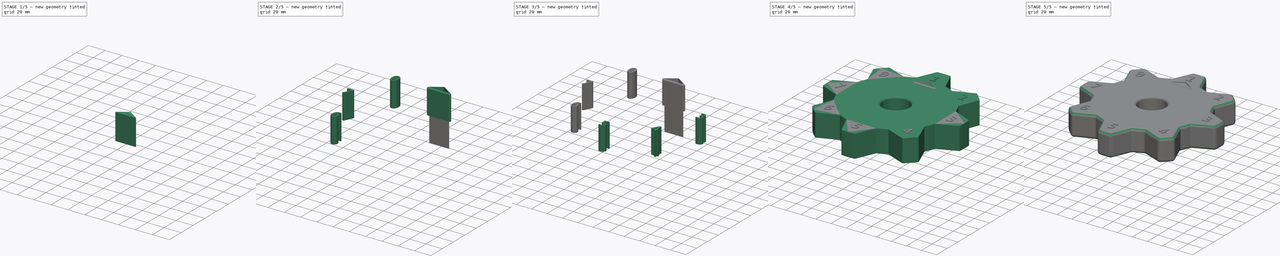
[diagram: build sequence overview — one tinted view per stage of 5, left to right]
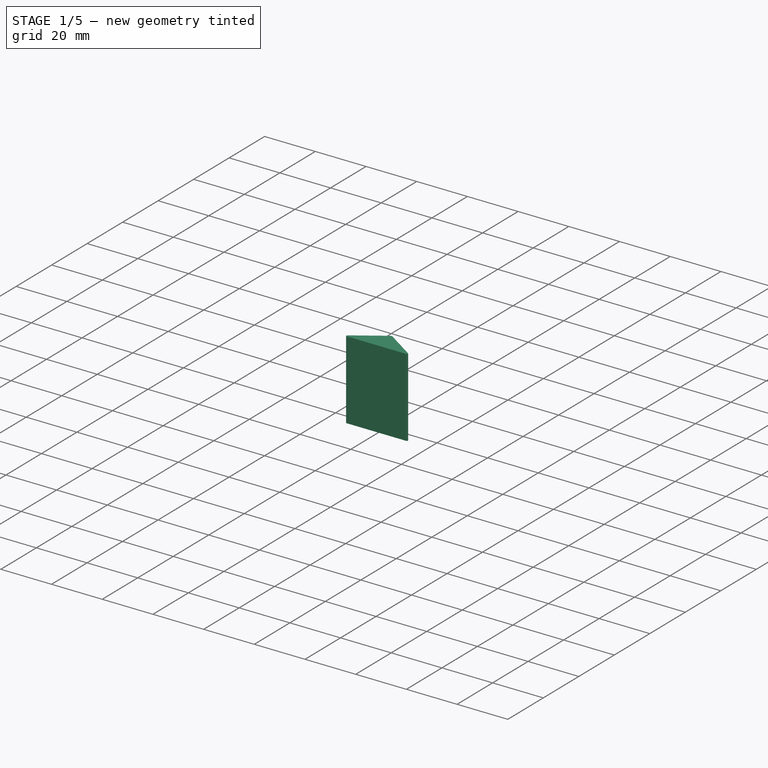
[diagram: stage 1 of 5 — iso view after this stage's code; geometry added in this stage tinted green]
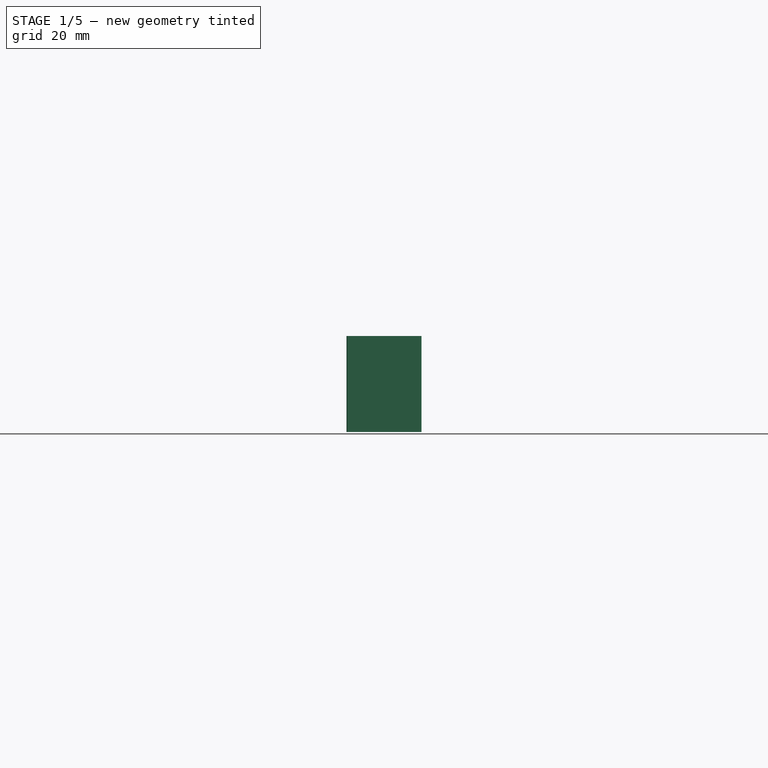
[diagram: stage 1 of 5 — front view after this stage's code; geometry added in this stage tinted green]
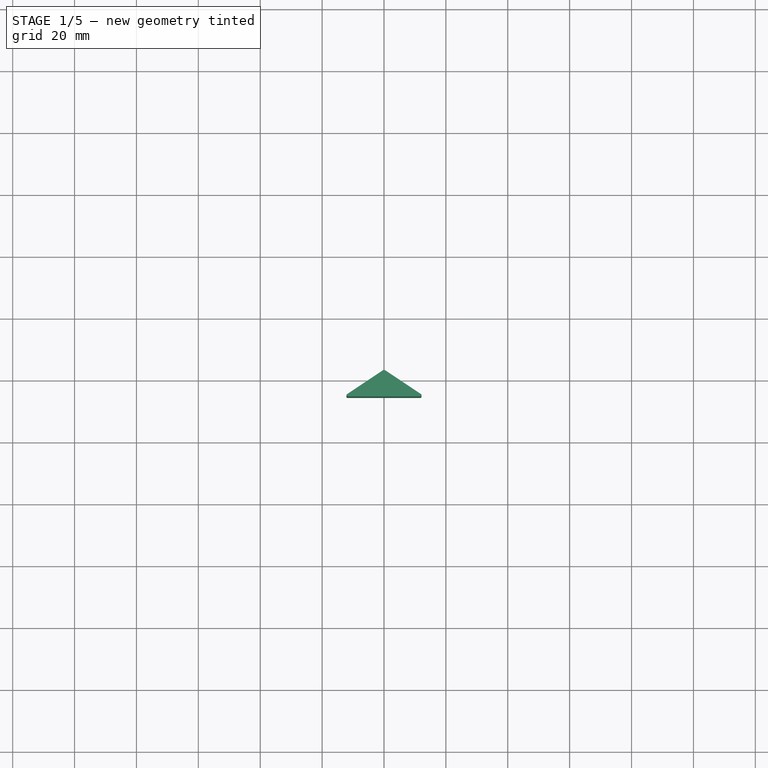
[diagram: stage 1 of 5 — top view after this stage's code; geometry added in this stage tinted green]
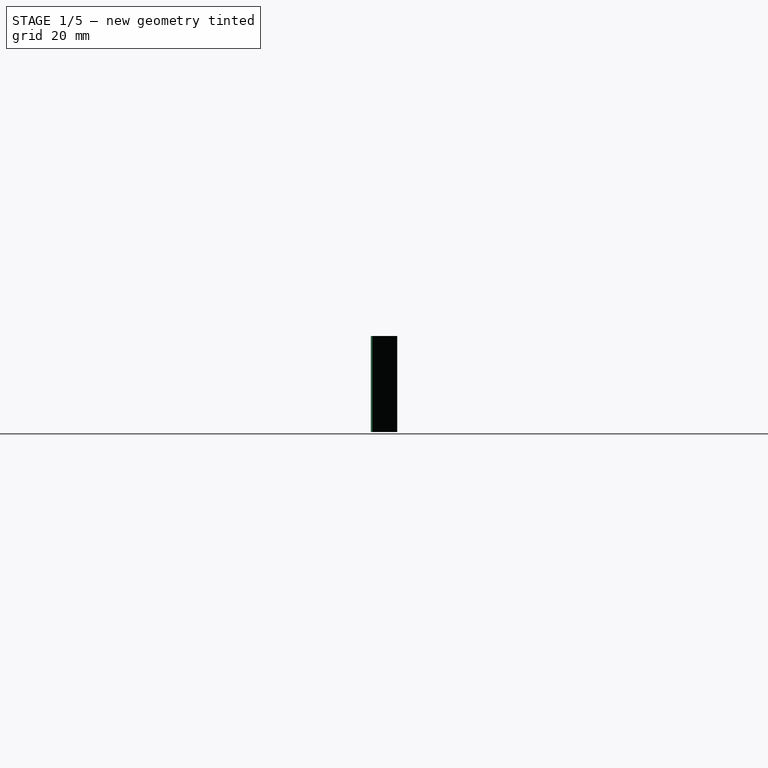
[diagram: stage 1 of 5 — right view after this stage's code; geometry added in this stage tinted green]
FCSTD DOCUMENT  (FreeCAD 0.19R24291 (Git))
Label: LogoGear
License: Creative Commons Attribution-NonCommercial
LicenseURL: http://creativecommons.org/licenses/by-nc/4.0/
objects: PartDesign::Body×12, PartDesign::Pad×11, Part::Part2DObjectPython×8, Sketcher::SketchObject×5, PartDesign::Fillet×5, Spreadsheet::Sheet×1, PartDesign::Pocket×1, App::Link×1, PartDesign::FeatureBase×1, Image::ImagePlane×1
note: 60 computed .brp shape members not serialized (recipe doc carries the construction recipe); baked Part::Feature solids carry a one-line shape summary decoded from their .brp

FEATURE [PartDesign::Body] Body010  label="Num0"
  Group = -> [ShapeString015,Pad009]
  Origin = -> Origin010
  Tip = -> Pad009
FEATURE [PartDesign::Pad] Pad010
  Direction = (1,1,1)
  Length = 31
  Length2 = 100
  Profile = -> Sketch002
  Refine = true
  Type = 0
FEATURE [PartDesign::Fillet] Fillet004
  Base = -> Pad010 [Edge5,Edge2,Edge1,Edge7,Edge9,Edge4]
  BaseFeature = -> Pad010
  Radius = 1.5
  Refine = true
  SupportTransform = false
FEATURE [PartDesign::Body] Body001  label="Marker"
  Group = -> [Sketch002,Pad010,Fillet004,Sketch004,Pocket]
  Origin = -> Origin001
  Tip = -> Pocket
FEATURE [App::Link] Link  label="Sketch006"
  LinkedObject = -> Sketch004
FEATURE [PartDesign::FeatureBase] BaseFeature
  BaseFeature = -> Sketch004
FEATURE [PartDesign::Pad] Pad011
  BaseFeature = -> BaseFeature
  Direction = (1,1,1)
  Length = 31
  Length2 = 100
  Profile = -> BaseFeature
  Refine = true
  Reversed = true
  Type = 0
FEATURE [PartDesign::Body] Body011  label="MarkerInternal"
  BaseFeature = -> Sketch004
  Group = -> [BaseFeature,Pad011]
  Origin = -> Origin011
  Tip = -> Pad011
FEATURE [Image::ImagePlane] ImagePlane  label="PropellerColorDisk"
  Placement = pos=(0,0,30.01) rot=(0,0,1;0.785398rad)
  XSize = 102
  YSize = 102
note: 8 file-system paths scrubbed to <path> (originals preserved in the JSON sidecar)
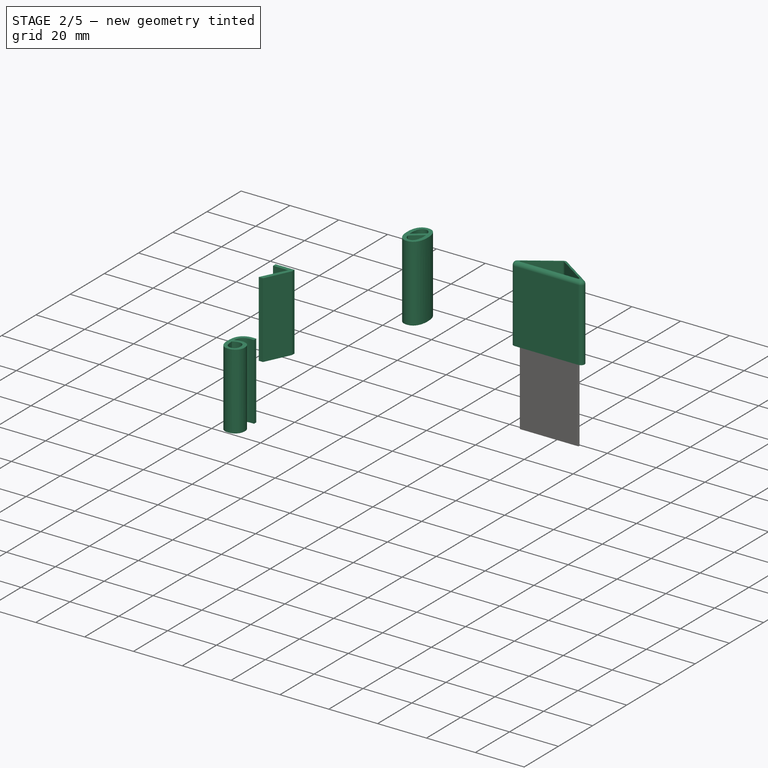
[diagram: stage 2 of 5 — iso view after this stage's code; geometry added in this stage tinted green]
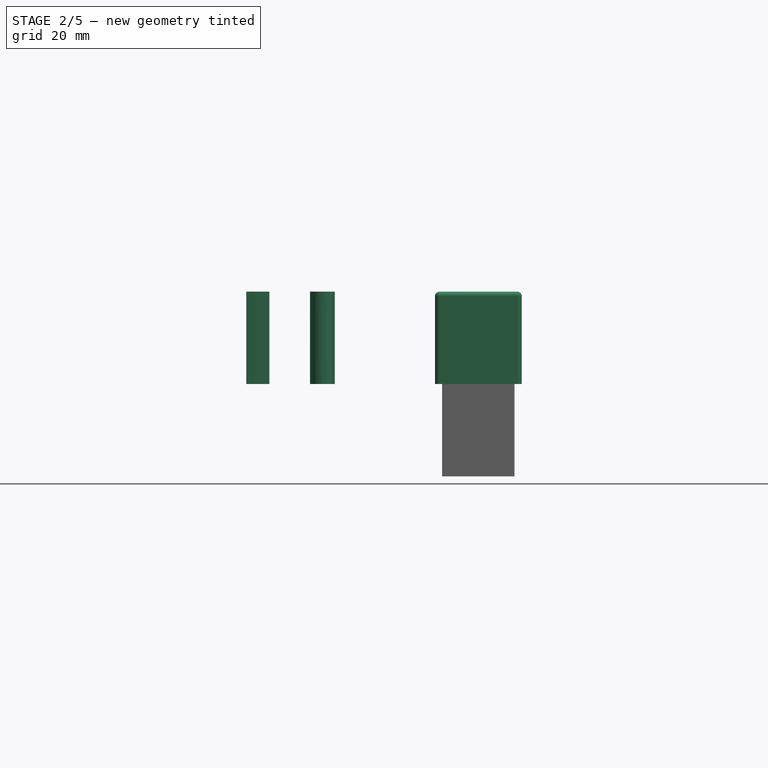
[diagram: stage 2 of 5 — front view after this stage's code; geometry added in this stage tinted green]
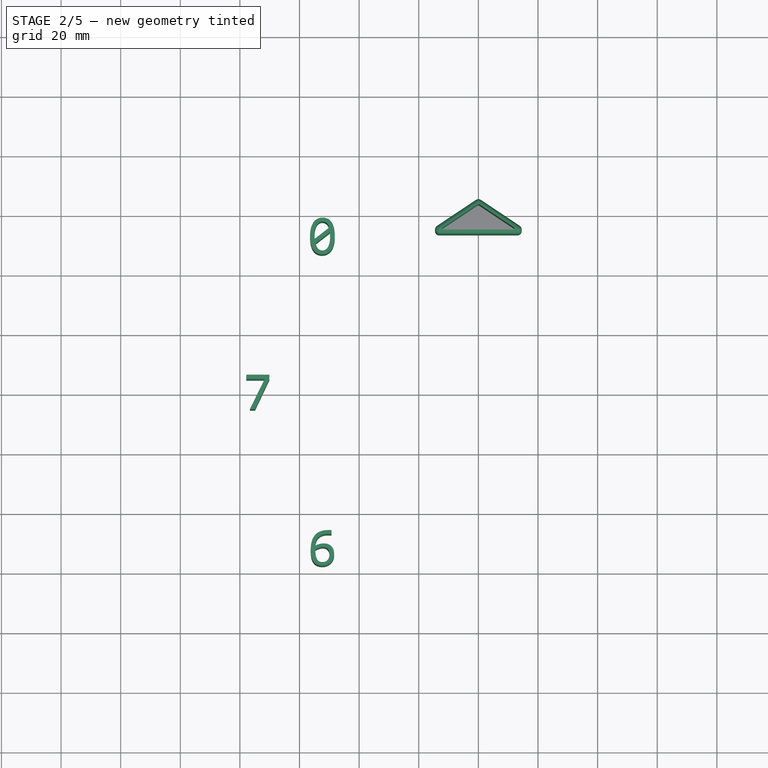
[diagram: stage 2 of 5 — top view after this stage's code; geometry added in this stage tinted green]
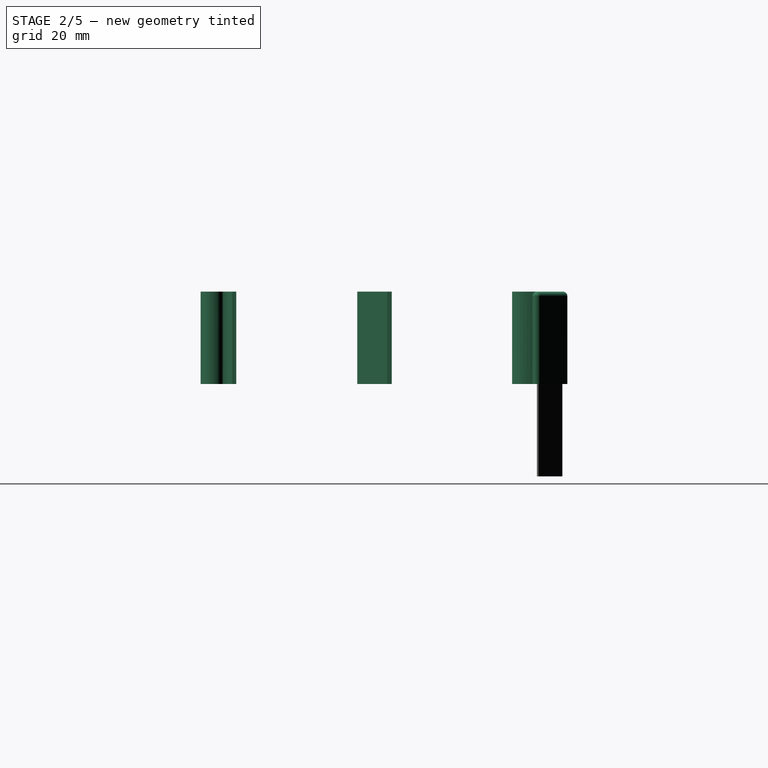
[diagram: stage 2 of 5 — right view after this stage's code; geometry added in this stage tinted green]
FEATURE [PartDesign::Body] Body007  label="Num5"
  Group = -> [ShapeString012,Pad006]
  Origin = -> Origin007
  Tip = -> Pad006
FEATURE [Part::Part2DObjectPython] ShapeString013  label="ShapeString6"  # Draft 2D object (typed FeaturePython)
  AttachmentOffset = pos=(-5.02377,-5.60467,0) rot=(0,0,1;0rad)
  FontFile = <path>
  MapMode = 1
  Placement = pos=(-57.3497,-57.9306,0) rot=(0,0,1;0rad)
  Size = 14
  String = 6
  Support = -> [Sketch003]
  Tracking = 0
  expr: .AttachmentOffset.Base.x = -5.023769808173477mm
  expr: .AttachmentOffset.Base.y = -5.604670558799mm
FEATURE [PartDesign::Pad] Pad007
  Direction = (1,1,1)
  Length = 31
  Length2 = 100
  Profile = -> ShapeString013
  Refine = true
  Type = 0
FEATURE [PartDesign::Body] Body008  label="Num6"
  Group = -> [ShapeString013,Pad007]
  Origin = -> Origin008
  Tip = -> Pad007
FEATURE [Part::Part2DObjectPython] ShapeString014  label="ShapeString7"  # Draft 2D object (typed FeaturePython)
  AttachmentOffset = pos=(-4.89825,-5.79149,0) rot=(0,0,1;0rad)
  FontFile = <path>
  MapMode = 1
  Placement = pos=(-78.8982,-5.79149,0) rot=(0,0,1;0rad)
  Size = 14
  String = 7
  Support = -> [Sketch003]
  Tracking = 0
  expr: .AttachmentOffset.Base.x = -4.898248540450375mm
  expr: .AttachmentOffset.Base.y = -5.791492910758966mm
FEATURE [PartDesign::Pad] Pad008
  Direction = (1,1,1)
  Length = 31
  Length2 = 100
  Profile = -> ShapeString014
  Refine = true
  Type = 0
FEATURE [PartDesign::Body] Body009  label="Num7"
  Group = -> [ShapeString014,Pad008]
  Origin = -> Origin009
  Tip = -> Pad008
FEATURE [Part::Part2DObjectPython] ShapeString015  label="ShapeString0"  # Draft 2D object (typed FeaturePython)
  AttachmentOffset = pos=(-4.93036,-5.79149,0) rot=(0,0,1;0rad)
  FontFile = <path>
  MapMode = 1
  Placement = pos=(-57.2563,46.5344,0) rot=(0,0,1;0rad)
  Size = 14
  String = 0
  Support = -> [Sketch003]
  Tracking = 0
  expr: .AttachmentOffset.Base.x = -4.930358632193494mm
  expr: .AttachmentOffset.Base.y = -5.791492910758966mm
FEATURE [PartDesign::Pad] Pad009
  Direction = (1,1,1)
  Length = 31
  Length2 = 100
  Profile = -> ShapeString015
  Refine = true
  Type = 0
FEATURE [Sketcher::SketchObject] Sketch004
  ExternalGeometry = -> [Sketch002]
  FullyConstrained = true
  MapMode = 5
  Placement = pos=(0,0,31) rot=(0,0,1;0rad)
  Support = -> [Fillet004]
  sketch-geometry (6):
    g0: LineSegment StartX=-11.9466 StartY=55.2328 StartZ=0 EndX=-0.44376 EndY=62.9014 EndZ=0
    g1: LineSegment StartX=-11.7247 StartY=54.5 StartZ=0 EndX=11.7247 EndY=54.5 EndZ=0
    g2: LineSegment StartX=0.44376 StartY=62.9014 StartZ=0 EndX=11.9466 EndY=55.2328 EndZ=0
    g3: ArcOfCircle CenterX=-11.7247 CenterY=54.9 CenterZ=0 NormalX=0 NormalY=0 NormalZ=1 AngleXU=0 Radius=0.4 StartAngle=2.15878 EndAngle=4.71239
    g4: ArcOfCircle CenterX=0 CenterY=62.2357 CenterZ=0 NormalX=0 NormalY=0 NormalZ=1 AngleXU=0 Radius=0.8 StartAngle=0.982794 EndAngle=2.1588
    g5: ArcOfCircle CenterX=11.7247 CenterY=54.9 CenterZ=0 NormalX=0 NormalY=0 NormalZ=1 AngleXU=0 Radius=0.4 StartAngle=4.71239 EndAngle=7.266
  constraints (21):
    c: Horizontal(g1)
    c: Coincident(g3,g0)
    c: Coincident(g3,g1)
    c: PointOnObject(g4,g-2)
    c: Coincident(g4,g0)
    c: Coincident(g5,g2)
    c: Coincident(g5,g1)
    c: Radius(g4) = 0.8
    c: Radius(g3) = 0.4
    c: Radius(g5) = 0.4
    c: Parallel(g-3,g0)
    c: Parallel(g2,g-4)
    c: Coincident(g4,g2)
    c: Distance(g0,g-3) = 1.5
    c: Distance(g2,g-4) = 1.5
    c: Tangent(g0,g4)
    c: Tangent(g0,g3)
    c: Tangent(g1,g3)
    c: Tangent(g2,g5)
    c: Tangent(g1,g5)
    c: Distance(g1,g-5) = 1.5
FEATURE [PartDesign::Pocket] Pocket
  BaseFeature = -> Fillet004
  Length = 32
  Length2 = 100
  Profile = -> Sketch004
  Refine = true
  Type = 0
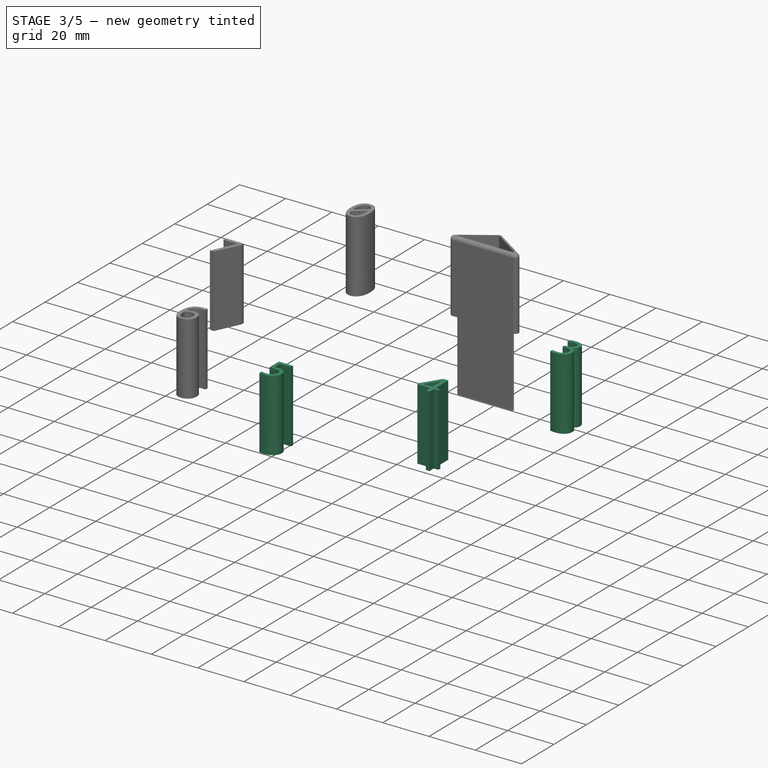
[diagram: stage 3 of 5 — iso view after this stage's code; geometry added in this stage tinted green]
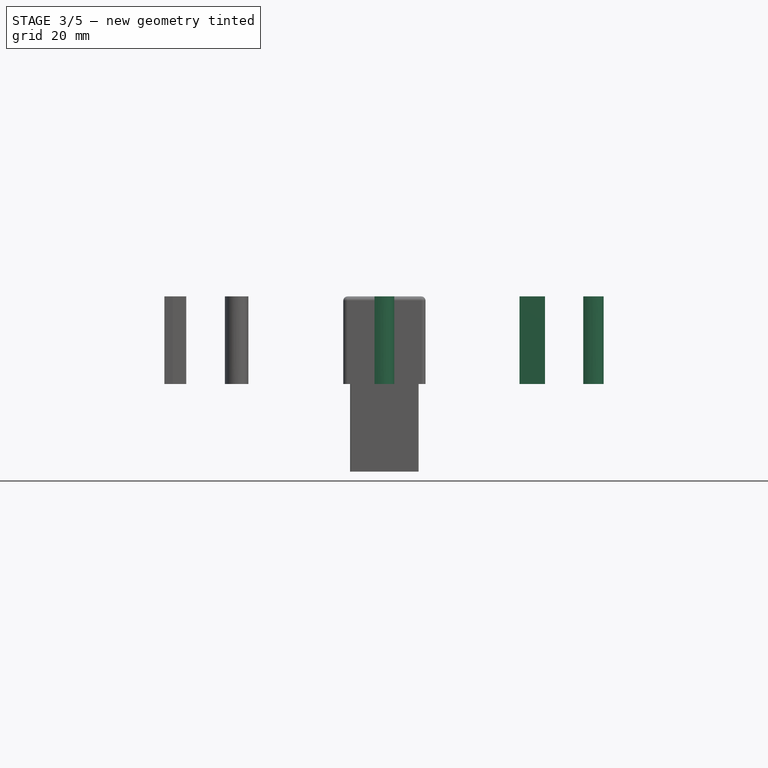
[diagram: stage 3 of 5 — front view after this stage's code; geometry added in this stage tinted green]
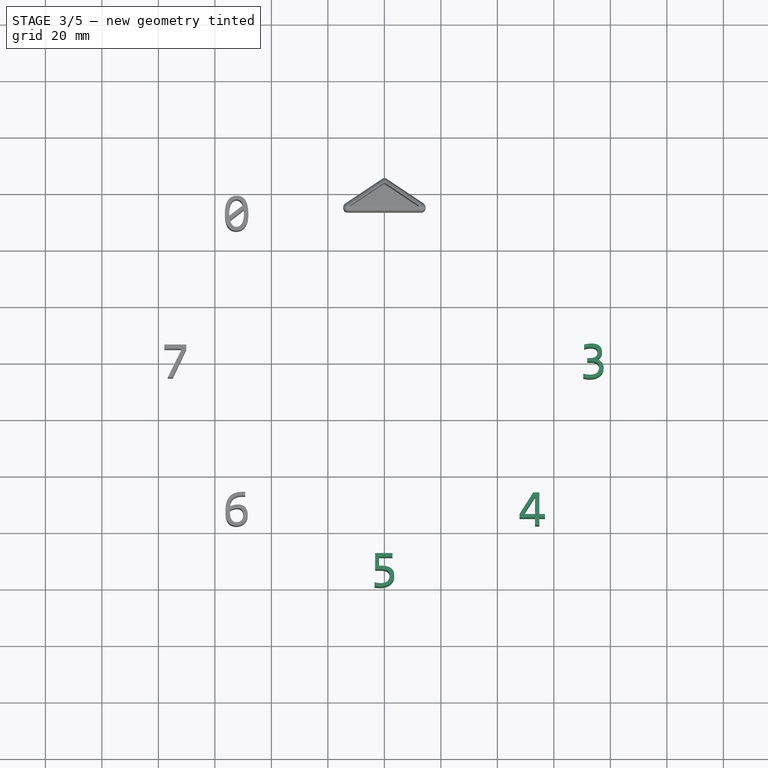
[diagram: stage 3 of 5 — top view after this stage's code; geometry added in this stage tinted green]
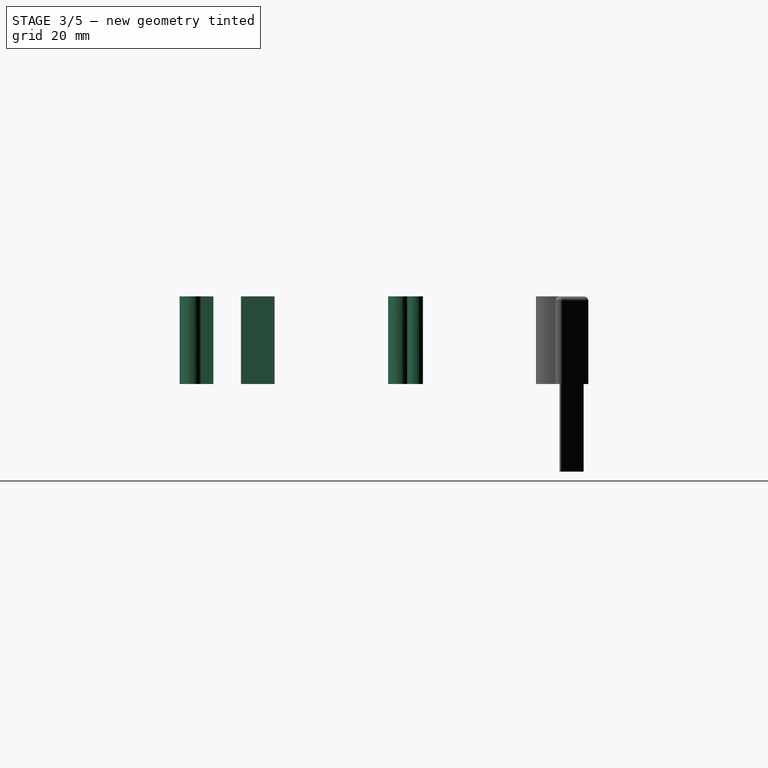
[diagram: stage 3 of 5 — right view after this stage's code; geometry added in this stage tinted green]
FEATURE [PartDesign::Body] Body004  label="Num2"
  Group = -> [ShapeString009,Pad003]
  Origin = -> Origin004
  Tip = -> Pad003
FEATURE [Part::Part2DObjectPython] ShapeString010  label="ShapeString3"  # Draft 2D object (typed FeaturePython)
  AttachmentOffset = pos=(-5.02,-5.79,0) rot=(0,0,1;0rad)
  FontFile = <path>
  MapMode = 1
  Placement = pos=(68.98,-5.79,0) rot=(0,0,1;0rad)
  Size = 14
  String = 3
  Support = -> [Sketch003]
  Tracking = 0
  expr: .Placement.Base.x = -5.02mm
  expr: .AttachmentOffset.Base.y = -5.79
  expr: .Placement.Base.y = -.Shape.BoundBox.Center.y
  expr: .AttachmentOffset.Base.x = -5.02
FEATURE [PartDesign::Pad] Pad004
  Direction = (1,1,1)
  Length = 31
  Length2 = 100
  Profile = -> ShapeString010
  Refine = true
  Type = 0
FEATURE [PartDesign::Body] Body005  label="Num3"
  Group = -> [ShapeString010,Pad004]
  Origin = -> Origin005
  Tip = -> Pad004
FEATURE [Part::Part2DObjectPython] ShapeString011  label="ShapeString4"  # Draft 2D object (typed FeaturePython)
  AttachmentOffset = pos=(-4.88949,-5.79149,0) rot=(0,0,1;0rad)
  FontFile = <path>
  MapMode = 1
  Placement = pos=(47.4364,-58.1174,0) rot=(0,0,1;0rad)
  Size = 14
  String = 4
  Support = -> [Sketch003]
  Tracking = 0
  expr: .AttachmentOffset.Base.x = -4.889491242702252mm
  expr: .AttachmentOffset.Base.y = -5.791492910758966mm
FEATURE [PartDesign::Pad] Pad005
  Direction = (1,1,1)
  Length = 31
  Length2 = 100
  Profile = -> ShapeString011
  Refine = true
  Type = 0
FEATURE [PartDesign::Body] Body006  label="Num4"
  Group = -> [ShapeString011,Pad005]
  Origin = -> Origin006
  Tip = -> Pad005
FEATURE [Part::Part2DObjectPython] ShapeString012  label="ShapeString5"  # Draft 2D object (typed FeaturePython)
  AttachmentOffset = pos=(-5.05004,-5.60467,0) rot=(0,0,1;0rad)
  FontFile = <path>
  MapMode = 1
  Placement = pos=(-5.05004,-79.6047,0) rot=(0,0,1;0rad)
  Size = 14
  String = 5
  Support = -> [Sketch003]
  Tracking = 0
  expr: .AttachmentOffset.Base.x = -5.050041701417848mm
  expr: .AttachmentOffset.Base.y = -5.604670558799mm
FEATURE [PartDesign::Pad] Pad006
  Direction = (1,1,1)
  Length = 31
  Length2 = 100
  Profile = -> ShapeString012
  Refine = true
  Type = 0
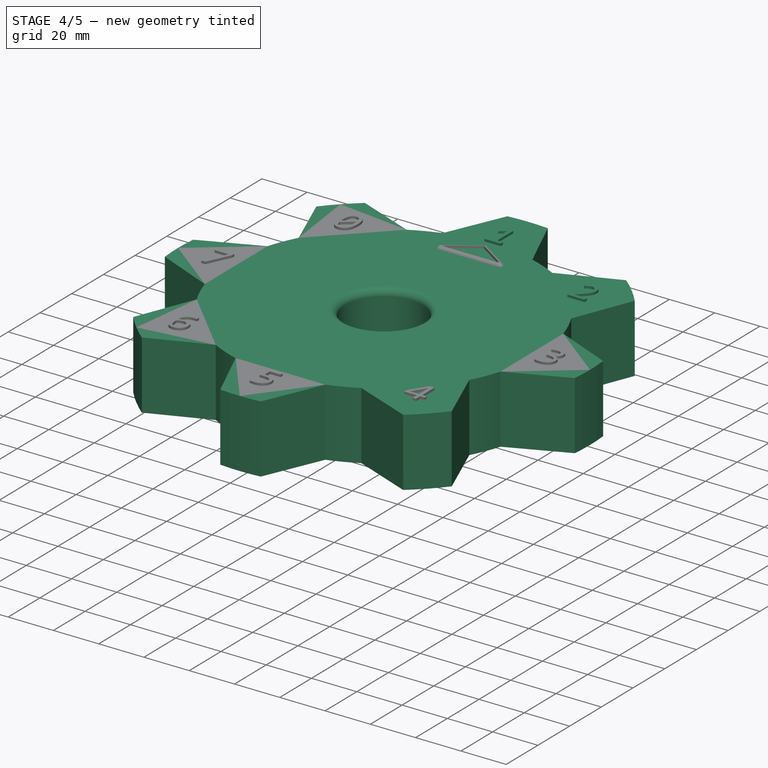
[diagram: stage 4 of 5 — iso view after this stage's code; geometry added in this stage tinted green]
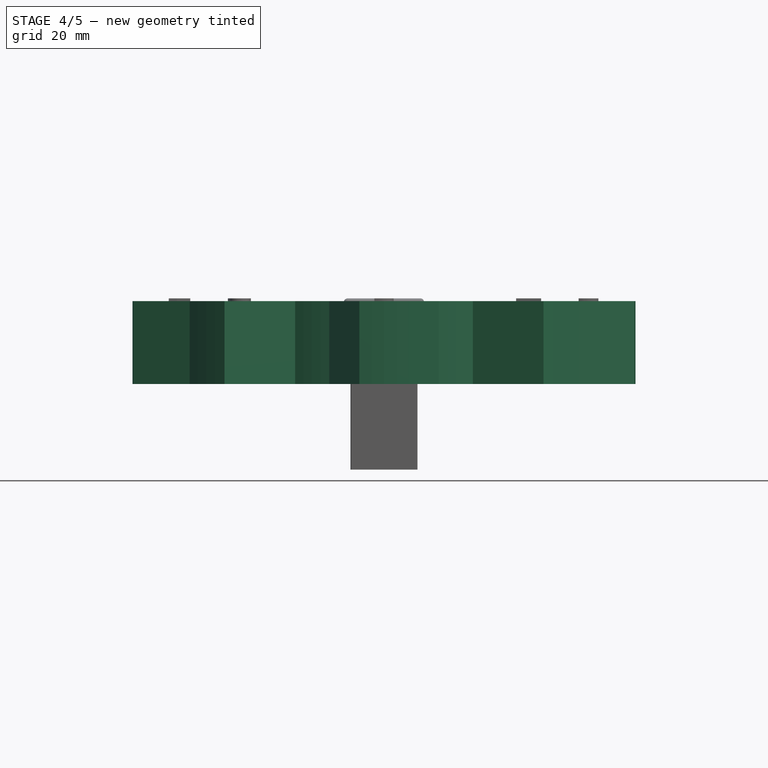
[diagram: stage 4 of 5 — front view after this stage's code; geometry added in this stage tinted green]
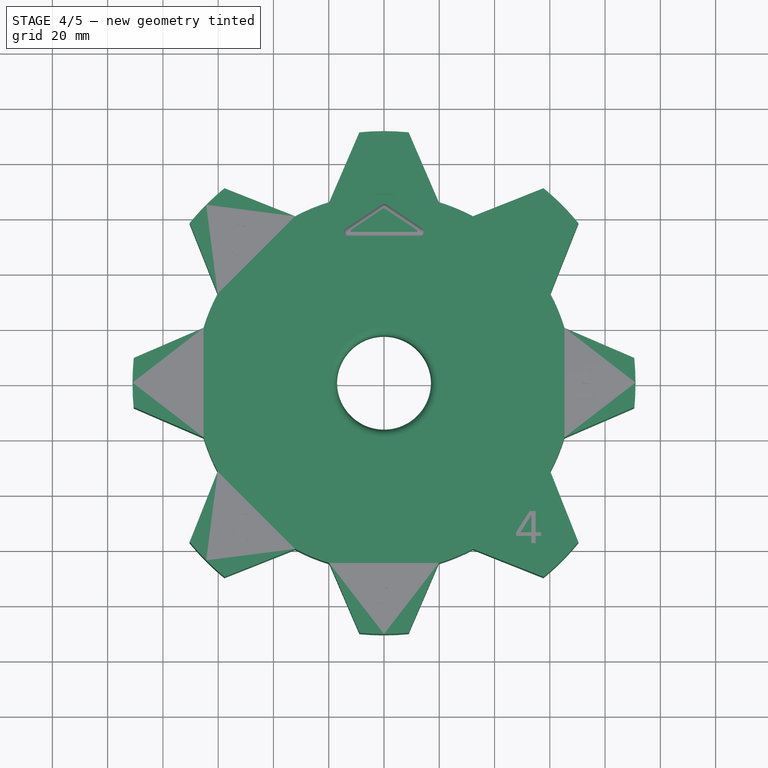
[diagram: stage 4 of 5 — top view after this stage's code; geometry added in this stage tinted green]
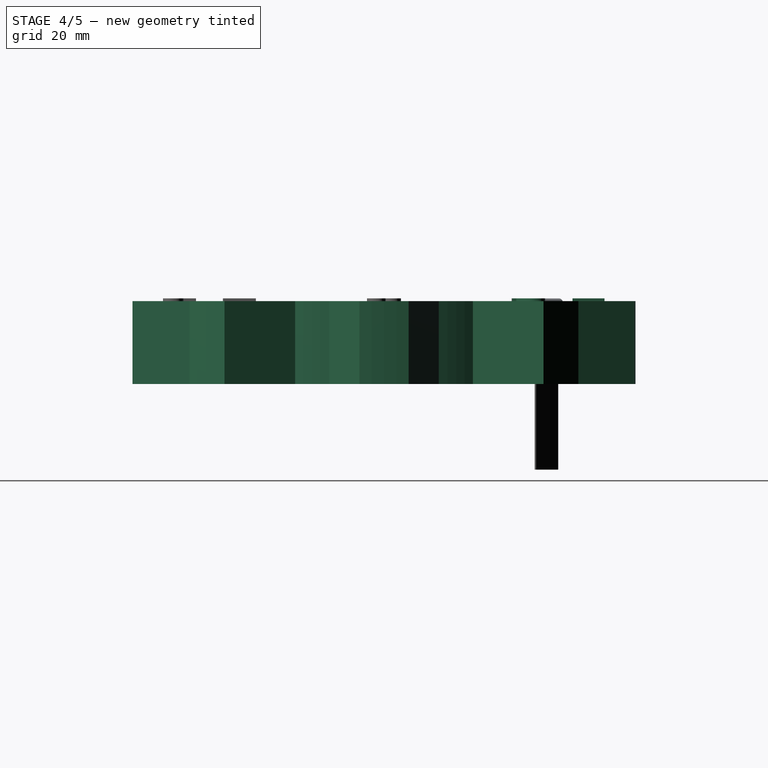
[diagram: stage 4 of 5 — right view after this stage's code; geometry added in this stage tinted green]
FEATURE [Sketcher::SketchObject] Sketch  label="Frame"
  FullyConstrained = true
  MapMode = 5
  Support = -> [XY_Plane]
  sketch-geometry (4):
    g0: LineSegment StartX=-107 StartY=107 StartZ=0 EndX=107 EndY=107 EndZ=0
    g1: LineSegment StartX=107 StartY=107 StartZ=0 EndX=107 EndY=-107 EndZ=0
    g2: LineSegment StartX=107 StartY=-107 StartZ=0 EndX=-107 EndY=-107 EndZ=0
    g3: LineSegment StartX=-107 StartY=-107 StartZ=0 EndX=-107 EndY=107 EndZ=0
  constraints (12):
    c: Coincident(g0,g1)
    c: Coincident(g1,g2)
    c: Coincident(g2,g3)
    c: Coincident(g3,g0)
    c: Horizontal(g0)
    c: Horizontal(g2)
    c: Vertical(g1)
    c: Vertical(g3)
    c: DistanceX(g0,g0) = 214
    c: DistanceY(g1,g1) = 214
    c: Distance(g0,g-2) = 107
    c: Distance(g0,g-1) = 107
FEATURE [Sketcher::SketchObject] Sketch001  label="MainGearSketch"
  FullyConstrained = true
  MapMode = 5
  Support = -> [XY_Plane]
  expr: Constraints[62] = Spreadsheet.sepAngule
  expr: Constraints[29] = Spreadsheet.sepAngule
  expr: Constraints[44] = Spreadsheet.sepAngule
  expr: .Constraints.p8 = Spreadsheet.sepAngule
  expr: Constraints[65] = Spreadsheet.sepAngule
  expr: Constraints[28] = Spreadsheet.sepAngule
  expr: .Constraints.p1 = Spreadsheet.a1
  expr: Constraints[25] = Spreadsheet.sepAngule
  expr: Constraints[31] = Spreadsheet.sepAngule
  expr: Constraints[30] = Spreadsheet.sepAngule
  expr: .Constraints.p6 = Spreadsheet.sepAngule
  expr: Constraints[27] = Spreadsheet.sepAngule
  expr: Constraints[70] = .Constraints.radInt
  expr: Constraints[46] = Spreadsheet.sepAngule
  expr: Constraints[73] = .Constraints.radInt
  expr: .Constraints.p7 = Spreadsheet.sepAngule
  expr: .Constraints.p4 = Spreadsheet.sepAngule
  expr: Constraints[59] = Spreadsheet.sepAngule
  expr: Constraints[61] = Spreadsheet.sepAngule
  expr: .Constraints.p2 = Spreadsheet.sepAngule
  expr: Constraints[80] = .Constraints.radExt
  expr: Constraints[81] = .Constraints.radExt
  expr: Constraints[42] = Spreadsheet.sepAngule
  expr: Constraints[78] = .Constraints.radExt
  expr: Constraints[79] = .Constraints.radExt
  expr: Constraints[32] = Spreadsheet.sepAngule
  expr: Constraints[74] = .Constraints.radInt
  expr: Constraints[26] = Spreadsheet.sepAngule
  expr: .Constraints.p5 = Spreadsheet.sepAngule
  expr: Constraints[34] = Spreadsheet.sepAngule
  expr: .Constraints.p3 = Spreadsheet.sepAngule
  expr: Constraints[43] = Spreadsheet.sepAngule
  expr: Constraints[109] = .Constraints.radExt
  expr: Constraints[67] = .Constraints.radInt
  expr: Constraints[163] = .Constraints.radExt
  expr: Constraints[110] = .Constraints.radExt
  expr: Constraints[64] = Spreadsheet.sepAngule
  expr: Constraints[48] = Spreadsheet.sepAngule
  expr: Constraints[68] = .Constraints.radInt
  expr: .Constraints.radExt = 91mm
  expr: Constraints[82] = .Constraints.radExt
  expr: Constraints[111] = .Constraints.radExt
  expr: Constraints[47] = Spreadsheet.sepAngule
  expr: Constraints[112] = .Constraints.radExt
  expr: Constraints[45] = Spreadsheet.sepAngule
  expr: Constraints[58] = Spreadsheet.sepAngule
  expr: Constraints[49] = Spreadsheet.sepAngule
  expr: Constraints[63] = Spreadsheet.sepAngule
  expr: Constraints[33] = Spreadsheet.sepAngule
  expr: Constraints[69] = .Constraints.radInt
  expr: Constraints[71] = .Constraints.radInt
  expr: Constraints[35] = Spreadsheet.sepAngule
  expr: Constraints[60] = Spreadsheet.sepAngule
  expr: Constraints[72] = .Constraints.radInt
  expr: Constraints[57] = Spreadsheet.sepAngule
  sketch-geometry (66):
    g0: LineSegment StartX=0 StartY=0 StartZ=0 EndX=0 EndY=91 EndZ=0
    g1: LineSegment StartX=0 StartY=0 StartZ=0 EndX=8.91956 EndY=90.5618 EndZ=0
    g2: LineSegment StartX=0 StartY=0 StartZ=0 EndX=19.8119 EndY=65.3112 EndZ=0
    g3: LineSegment StartX=0 StartY=0 StartZ=0 EndX=32.1728 EndY=60.1911 EndZ=0
    g4: LineSegment StartX=0 StartY=0 StartZ=0 EndX=57.7298 EndY=70.344 EndZ=0
    g5: LineSegment StartX=0 StartY=0 StartZ=0 EndX=70.344 EndY=57.7298 EndZ=0
    g6: LineSegment StartX=0 StartY=0 StartZ=0 EndX=60.1911 EndY=32.1728 EndZ=0
    g7: LineSegment StartX=0 StartY=0 StartZ=0 EndX=65.3112 EndY=19.8119 EndZ=0
    g8: LineSegment StartX=0 StartY=0 StartZ=0 EndX=90.5618 EndY=8.91956 EndZ=0
    g9: LineSegment StartX=0 StartY=0 StartZ=0 EndX=90.5618 EndY=-8.91956 EndZ=0
    g10: LineSegment StartX=0 StartY=0 StartZ=0 EndX=65.3112 EndY=-19.8119 EndZ=0
    g11: LineSegment StartX=0 StartY=0 StartZ=0 EndX=60.1911 EndY=-32.1728 EndZ=0
    g12: LineSegment StartX=0 StartY=0 StartZ=0 EndX=70.344 EndY=-57.7298 EndZ=0
    g13: LineSegment StartX=0 StartY=0 StartZ=0 EndX=57.7298 EndY=-70.344 EndZ=0
    g14: LineSegment StartX=0 StartY=0 StartZ=0 EndX=32.1728 EndY=-60.1911 EndZ=0
    g15: LineSegment StartX=0 StartY=0 StartZ=0 EndX=19.8119 EndY=-65.3112 EndZ=0
    g16: LineSegment StartX=0 StartY=0 StartZ=0 EndX=8.91956 EndY=-90.5618 EndZ=0
    g17: LineSegment StartX=0 StartY=0 StartZ=0 EndX=-8.91956 EndY=-90.5618 EndZ=0
    g18: LineSegment StartX=0 StartY=0 StartZ=0 EndX=-19.8119 EndY=-65.3112 EndZ=0
    g19: LineSegment StartX=0 StartY=0 StartZ=0 EndX=-32.1728 EndY=-60.1911 EndZ=0
    g20: LineSegment StartX=0 StartY=0 StartZ=0 EndX=-57.7298 EndY=-70.344 EndZ=0
    g21: LineSegment StartX=0 StartY=0 StartZ=0 EndX=-70.344 EndY=-57.7298 EndZ=0
    g22: LineSegment StartX=0 StartY=0 StartZ=0 EndX=-60.1911 EndY=-32.1728 EndZ=0
    g23: LineSegment StartX=0 StartY=0 StartZ=0 EndX=-65.3112 EndY=-19.8119 EndZ=0
    g24: LineSegment StartX=0 StartY=0 StartZ=0 EndX=-90.5618 EndY=-8.91956 EndZ=0
    g25: LineSegment StartX=0 StartY=0 StartZ=0 EndX=-90.5618 EndY=8.91956 EndZ=0
    g26: LineSegment StartX=0 StartY=0 StartZ=0 EndX=-65.3112 EndY=19.8119 EndZ=0
    g27: LineSegment StartX=0 StartY=0 StartZ=0 EndX=-60.1911 EndY=32.1728 EndZ=0
    g28: LineSegment StartX=0 StartY=0 StartZ=0 EndX=-70.344 EndY=57.7298 EndZ=0
    g29: LineSegment StartX=0 StartY=0 StartZ=0 EndX=-57.7298 EndY=70.344 EndZ=0
    g30: LineSegment StartX=0 StartY=0 StartZ=0 EndX=-32.1728 EndY=60.1911 EndZ=0
    g31: LineSegment StartX=0 StartY=0 StartZ=0 EndX=-19.8119 EndY=65.3112 EndZ=0
    g32: LineSegment StartX=0 StartY=0 StartZ=0 EndX=-8.91956 EndY=90.5618 EndZ=0
    g33: ArcOfCircle CenterX=-1.72e-14 CenterY=-2.91e-14 CenterZ=0 NormalX=0 NormalY=0 NormalZ=1 AngleXU=0 Radius=68.25 StartAngle=5.79231 EndAngle=5.98866
    g34: ArcOfCircle CenterX=-1.72e-14 CenterY=-2.91e-14 CenterZ=0 NormalX=0 NormalY=0 NormalZ=1 AngleXU=0 Radius=68.25 StartAngle=0.294524 EndAngle=0.490874
    g35: ArcOfCircle CenterX=-1.72e-14 CenterY=-2.91e-14 CenterZ=0 NormalX=0 NormalY=0 NormalZ=1 AngleXU=0 Radius=91 StartAngle=0.687223 EndAngle=0.883573
    g36: ArcOfCircle CenterX=-1.72e-14 CenterY=-2.91e-14 CenterZ=0 NormalX=0 NormalY=0 NormalZ=1 AngleXU=0 Radius=91 StartAngle=6.18501 EndAngle=6.38136
    g37: ArcOfCircle CenterX=-1.72e-14 CenterY=-2.91e-14 CenterZ=0 NormalX=0 NormalY=0 NormalZ=1 AngleXU=0 Radius=91 StartAngle=5.39961 EndAngle=5.59596
    g38: ArcOfCircle CenterX=-1.72e-14 CenterY=-2.91e-14 CenterZ=0 NormalX=0 NormalY=0 NormalZ=1 AngleXU=0 Radius=91 StartAngle=4.61421 EndAngle=4.81056
    g39: ArcOfCircle CenterX=-1.72e-14 CenterY=-2.91e-14 CenterZ=0 NormalX=0 NormalY=0 NormalZ=1 AngleXU=0 Radius=91 StartAngle=3.82882 EndAngle=4.02517
    g40: ArcOfCircle CenterX=-1.72e-14 CenterY=-2.91e-14 CenterZ=0 NormalX=0 NormalY=0 NormalZ=1 AngleXU=0 Radius=91 StartAngle=3.04342 EndAngle=3.23977
    g41: ArcOfCircle CenterX=-1.72e-14 CenterY=-2.91e-14 CenterZ=0 NormalX=0 NormalY=0 NormalZ=1 AngleXU=0 Radius=91 StartAngle=2.25802 EndAngle=2.45437
    g42: ArcOfCircle CenterX=-1.72e-14 CenterY=-2.91e-14 CenterZ=0 NormalX=0 NormalY=0 NormalZ=1 AngleXU=0 Radius=91 StartAngle=1.47262 EndAngle=1.66897
    g43: ArcOfCircle CenterX=-1.72e-14 CenterY=-2.91e-14 CenterZ=0 NormalX=0 NormalY=0 NormalZ=1 AngleXU=0 Radius=68.25 StartAngle=5.00691 EndAngle=5.20326
    g44: ArcOfCircle CenterX=-1.72e-14 CenterY=-2.91e-14 CenterZ=0 NormalX=0 NormalY=0 NormalZ=1 AngleXU=0 Radius=68.25 StartAngle=1.07992 EndAngle=1.27627
    g45: LineSegment StartX=8.91956 StartY=90.5618 StartZ=0 EndX=19.8119 EndY=65.3112 EndZ=0
    g46: LineSegment StartX=32.1728 StartY=60.1911 StartZ=0 EndX=57.7298 EndY=70.344 EndZ=0
    g47: LineSegment StartX=70.344 StartY=57.7298 StartZ=0 EndX=60.1911 EndY=32.1728 EndZ=0
    g48: LineSegment StartX=65.3112 StartY=19.8119 StartZ=0 EndX=90.5618 EndY=8.91956 EndZ=0
    g49: LineSegment StartX=90.5618 StartY=-8.91956 StartZ=0 EndX=65.3112 EndY=-19.8119 EndZ=0
    g50: LineSegment StartX=60.1911 StartY=-32.1728 StartZ=0 EndX=70.344 EndY=-57.7298 EndZ=0
    g51: LineSegment StartX=57.7298 StartY=-70.344 StartZ=0 EndX=32.1728 EndY=-60.1911 EndZ=0
    g52: LineSegment StartX=19.8119 StartY=-65.3112 StartZ=0 EndX=8.91956 EndY=-90.5618 EndZ=0
    g53: LineSegment StartX=-8.91956 StartY=-90.5618 StartZ=0 EndX=-19.8119 EndY=-65.3112 EndZ=0
    g54: LineSegment StartX=-32.1728 StartY=-60.1911 StartZ=0 EndX=-57.7298 EndY=-70.344 EndZ=0
    g55: LineSegment StartX=-70.344 StartY=-57.7298 StartZ=0 EndX=-60.1911 EndY=-32.1728 EndZ=0
    g56: LineSegment StartX=-65.3112 StartY=-19.8119 StartZ=0 EndX=-90.5618 EndY=-8.91956 EndZ=0
    g57: LineSegment StartX=-90.5618 StartY=8.91956 StartZ=0 EndX=-65.3112 EndY=19.8119 EndZ=0
    g58: LineSegment StartX=-60.1911 StartY=32.1728 StartZ=0 EndX=-70.344 EndY=57.7298 EndZ=0
    g59: LineSegment StartX=-57.7298 StartY=70.344 StartZ=0 EndX=-32.1728 EndY=60.1911 EndZ=0
    g60: LineSegment StartX=-19.8119 StartY=65.3112 StartZ=0 EndX=-8.91956 EndY=90.5618 EndZ=0
    g61: ArcOfCircle CenterX=-1.72e-14 CenterY=-2.91e-14 CenterZ=0 NormalX=0 NormalY=0 NormalZ=1 AngleXU=0 Radius=68.25 StartAngle=2.65072 EndAngle=2.84707
    g62: ArcOfCircle CenterX=-1.72e-14 CenterY=-2.91e-14 CenterZ=0 NormalX=0 NormalY=0 NormalZ=1 AngleXU=0 Radius=68.25 StartAngle=3.43612 EndAngle=3.63247
    g63: ArcOfCircle CenterX=-1.72e-14 CenterY=-2.91e-14 CenterZ=0 NormalX=0 NormalY=0 NormalZ=1 AngleXU=0 Radius=68.25 StartAngle=4.22152 EndAngle=4.41786
    g64: ArcOfCircle CenterX=-1.72e-14 CenterY=-2.91e-14 CenterZ=0 NormalX=0 NormalY=0 NormalZ=1 AngleXU=0 Radius=68.25 StartAngle=1.86532 EndAngle=2.06167
    g65: Circle CenterX=-1.72e-14 CenterY=-2.91e-14 CenterZ=0 NormalX=0 NormalY=0 NormalZ=1 AngleXU=0 Radius=17
  constraints (166):
    c: Coincident(g0,g-1)
    c: Vertical(g0)
    c: Coincident(g1,g-1)
    c: Angle(g1,g0) = 0.0981748  'p1'
    c: Coincident(g2,g-1)
    c: Angle(g2,g1) = 0.19635  'p2'
    c: Coincident(g3,g-1)
    c: Angle(g3,g2) = 0.19635  'p3'
    c: Coincident(g4,g-1)
    c: Angle(g4,g3) = 0.19635  'p4'
    c: Coincident(g5,g-1)
    c: Coincident(g6,g-1)
    c: Coincident(g7,g-1)
    c: Coincident(g8,g-1)
    c: Angle(g5,g4) = 0.19635  'p5'
    c: Angle(g6,g5) = 0.19635  'p6'
    c: Angle(g7,g6) = 0.19635  'p7'
    c: Angle(g8,g7) = 0.19635  'p8'
    c: Coincident(g9,g-1)
    c: Coincident(g10,g-1)
    c: Coincident(g11,g-1)
    c: Coincident(g12,g-1)
    c: Coincident(g13,g-1)
    c: Coincident(g14,g-1)
    c: Coincident(g15,g-1)
    c: Coincident(g16,g-1) = 11.25
    c: Angle(g9,g8) = 0.19635
    c: Angle(g10,g9) = 0.19635
    c: Angle(g11,g10) = 0.19635
    c: Angle(g12,g11) = 0.19635
    c: Angle(g13,g12) = 0.19635
    c: Angle(g14,g13) = 0.19635
    c: Angle(g15,g14) = 0.19635
    c: Angle(g16,g15) = 0.19635
    c: Coincident(g17,g-1) = 11.25
    c: Angle(g17,g16) = 0.19635
    c: Coincident(g18,g-1)
    c: Coincident(g19,g-1)
    c: Coincident(g20,g-1)
    c: Coincident(g21,g-1)
    c: Coincident(g22,g-1)
    c: Coincident(g23,g-1)
    c: Coincident(g24,g-1) = 11.25
    c: Angle(g18,g17) = 0.19635
    c: Angle(g19,g18) = 0.19635
    c: Angle(g20,g19) = 0.19635
    c: Angle(g21,g20) = 0.19635
    c: Angle(g22,g21) = 0.19635
    c: Angle(g23,g22) = 0.19635
    c: Angle(g24,g23) = 0.19635
    c: Coincident(g25,g-1)
    c: Coincident(g26,g-1)
    c: Coincident(g27,g-1)
    c: Coincident(g28,g-1)
    c: Coincident(g29,g-1)
    c: Coincident(g30,g-1)
    c: Coincident(g31,g-1)
    c: Coincident(g32,g-1) = 11.25
    c: Angle(g25,g24) = 0.19635
    c: Angle(g26,g25) = 0.19635
    c: Angle(g27,g26) = 0.19635
    c: Angle(g28,g27) = 0.19635
    c: Angle(g29,g28) = 0.19635
    c: Angle(g30,g29) = 0.19635
    c: Angle(g31,g30) = 0.19635
    c: Angle(g32,g31) = 0.19635
    c: Distance(g2) = 68.25  'radInt'
    c: Distance(g3) = 68.25
    c: Distance(g6) = 68.25
    c: Distance(g10) = 68.25
    c: Distance(g14) = 68.25
    c: Distance(g18) = 68.25
    c: Distance(g22) = 68.25
    c: Distance(g26) = 68.25
    c: Distance(g30) = 68.25
    c: Coincident(g33,g10)
    c: Coincident(g33,g11)
    c: Distance(g0) = 91  'radExt'
    c: Distance(g1) = 91
    c: Distance(g4) = 91
    c: Distance(g5) = 91
    c: Distance(g8) = 91
    c: Distance(g12) = 91
    c: Coincident(g34,g33)
    c: Coincident(g34,g7)
    c: Coincident(g34,g6)
    c: Coincident(g35,g33)
    c: Coincident(g35,g5)
    c: Coincident(g35,g4)
    c: Coincident(g36,g33)
    c: Coincident(g36,g9)
    c: Coincident(g36,g8)
    c: Coincident(g37,g33)
    c: Coincident(g37,g12)
    c: Coincident(g37,g13)
    c: Coincident(g38,g33)
    c: Coincident(g38,g16)
    c: Coincident(g38,g17)
    c: Coincident(g39,g33)
    c: Coincident(g39,g20)
    c: Coincident(g39,g21)
    c: Coincident(g40,g33)
    c: Coincident(g40,g24)
    c: Coincident(g40,g25)
    c: Coincident(g41,g33)
    c: Coincident(g41,g28)
    c: Coincident(g41,g29)
    c: Coincident(g42,g33)
    c: Coincident(g42,g1)
    c: Coincident(g42,g32) = 91
    c: Distance(g16) = 91
    c: Distance(g20) = 91
    c: Distance(g24) = 91
    c: Coincident(g43,g33)
    c: Coincident(g43,g14)
    c: Coincident(g43,g15)
    c: Coincident(g44,g33)
    c: Coincident(g44,g2)
    c: Coincident(g44,g3)
    c: Coincident(g45,g42)
    c: Coincident(g45,g44)
    c: Coincident(g46,g44)
    c: Coincident(g46,g35)
    c: Coincident(g47,g35)
    c: Coincident(g47,g34)
    c: Coincident(g48,g34)
    c: Coincident(g48,g36)
    c: Coincident(g49,g36)
    c: Coincident(g49,g33)
    c: Coincident(g50,g33)
    c: Coincident(g50,g37)
    c: Coincident(g51,g37)
    c: Coincident(g51,g43)
    c: Coincident(g52,g43)
    c: Coincident(g52,g38)
    c: Coincident(g53,g38)
    c: Coincident(g53,g18)
    c: Coincident(g54,g19)
    c: Coincident(g54,g39)
    c: Coincident(g55,g39)
    c: Coincident(g55,g22)
    c: Coincident(g56,g23)
    c: Coincident(g56,g40)
    c: Coincident(g57,g40)
    c: Coincident(g57,g26)
    c: Coincident(g58,g27)
    c: Coincident(g58,g41)
    c: Coincident(g59,g41)
    c: Coincident(g59,g30)
    c: Coincident(g60,g31)
    c: Coincident(g60,g42)
    c: Coincident(g61,g33)
    c: Coincident(g61,g58)
    c: Coincident(g61,g57)
    c: Coincident(g62,g33)
    c: Coincident(g62,g56)
    c: Coincident(g62,g55)
    c: Coincident(g63,g33)
    c: Coincident(g63,g53)
    c: Coincident(g63,g54)
    c: Coincident(g64,g33)
    c: Coincident(g64,g59)
    c: Coincident(g64,g60)
    c: Distance(g29) = 91
    c: Coincident(g65,g33)
    c: Radius(g65) = 17
FEATURE [Spreadsheet::Sheet] Spreadsheet
  cells = A1=sepAngule; B1=shiftAngule; D1=ShapeString1; A2(sepAngule)==360 / 32; B2(shiftAngle)==sepAngule / 2; A4=points; A5=1; B5(a1)=5.625; A6=2; B6(a2)=16.875; A7=3; B7(a3)=28.125; A8=4; B8(a4)=39.375; A9=5; B9(a5)=50.625; A10=6; B10(a6)=61.875; A11=7; B11(a7)=73.125; A12=8; B12(a8)=84.375; A13=9; B13(a9)=95.625; A14=10; B14(a10)=106.875; A15=11; B15(a11)=118.125; A16=12; B16(a12)=129.375; A17=13; B17(a13)=140.625; A18=14; B18(a14)=151.875; A19=15; B19(a15)=163.125; A20=16; B20(a16)=174.375; A21=17; B21(a17)=185.625; A22=18; B22(a18)=196.875; A23=19; B23(a19)=208.125; A24=20; B24(a20)=219.375; A25=21; B25(a21)=230.625; A26=22; B26(a22)=241.875; A27=23; B27(a23)=253.125; A28=24; B28(a24)=264.375; A29=25; B29(a25)=275.625; A30=26; B30(a26)=286.875; A31=27; B31(a27)=298.125; A32=28; B32(a28)=309.375; A33=29; B33(a29)=320.625; A34=30; B34(a30)=331.875; A35=31; B35(a31)=343.125; A36=32; B36(a32)=354.375
FEATURE [PartDesign::Pad] Pad
  Direction = (1,1,1)
  Length = 30
  Length2 = 100
  Profile = -> Sketch001
  Refine = true
  Type = 0
FEATURE [PartDesign::Fillet] Fillet  label="CenterFillet"
  Base = -> Pad [Face33]
  BaseFeature = -> Pad
  Radius = 3
  Refine = true
  SupportTransform = false
FEATURE [PartDesign::Body] Body  label="GearBody"
  Group = -> [Sketch,Sketch001,Pad,Fillet,Fillet001,Fillet002,Fillet003]
  Origin = -> Origin
  Tip = -> Fillet003
FEATURE [Sketcher::SketchObject] Sketch002  label="MarkerSketch"
  FullyConstrained = true
  MapMode = 5
  Support = -> [XY_Plane001]
  sketch-geometry (3):
    g0: LineSegment StartX=-1e-16 StartY=65 StartZ=0 EndX=18 EndY=53 EndZ=0
    g1: LineSegment StartX=18 StartY=53 StartZ=0 EndX=-18 EndY=53 EndZ=0
    g2: LineSegment StartX=-1e-16 StartY=65 StartZ=0 EndX=-18 EndY=53 EndZ=0
  constraints (9):
    c: PointOnObject(g0,g-2)
    c: Horizontal(g1)
    c: Coincident(g2,g0)
    c: Coincident(g2,g1)
    c: DistanceX(g1,g1) = 36
    c: Coincident(g0,g1)
    c: Equal(g2,g0)
    c: DistanceY(g-1,g1) = 53
    c: Distance(g0,g1) = 12
FEATURE [Sketcher::SketchObject] Sketch003  label="Positions"
  FullyConstrained = true
  MapMode = 5
  Support = -> [XY_Plane002]
  expr: Constraints[24] = .Constraints.centerPointLenght
  expr: Constraints[22] = .Constraints.centerPointLenght
  expr: Constraints[21] = .Constraints.centerPointLenght
  expr: Constraints[20] = .Constraints.centerPointLenght
  expr: Constraints[23] = .Constraints.centerPointLenght
  expr: Constraints[19] = .Constraints.centerPointLenght
  expr: Constraints[18] = .Constraints.centerPointLenght
  sketch-geometry (16):
    g0: LineSegment StartX=0 StartY=0 StartZ=0 EndX=0 EndY=74 EndZ=0
    g1: GeomPoint X=0 Y=74 Z=0
    g2: LineSegment StartX=0 StartY=0 StartZ=0 EndX=52.3259 EndY=52.3259 EndZ=0
    g3: LineSegment StartX=0 StartY=0 StartZ=0 EndX=-52.3259 EndY=52.3259 EndZ=0
    g4: LineSegment StartX=0 StartY=0 StartZ=0 EndX=74 EndY=0 EndZ=0
    g5: LineSegment StartX=0 StartY=0 StartZ=0 EndX=-74 EndY=0 EndZ=0
    g6: LineSegment StartX=0 StartY=0 StartZ=0 EndX=0 EndY=-74 EndZ=0
    g7: LineSegment StartX=0 StartY=0 StartZ=0 EndX=52.3259 EndY=-52.3259 EndZ=0
    g8: LineSegment StartX=0 StartY=0 StartZ=0 EndX=-52.3259 EndY=-52.3259 EndZ=0
    g9: GeomPoint X=52.3259 Y=52.3259 Z=0
    g10: GeomPoint X=74 Y=0 Z=0
    g11: GeomPoint X=52.3259 Y=-52.3259 Z=0
    g12: GeomPoint X=0 Y=-74 Z=0
    g13: GeomPoint X=-52.3259 Y=-52.3259 Z=0
    g14: GeomPoint X=-74 Y=0 Z=0
    g15: GeomPoint X=-52.3259 Y=52.3259 Z=0
  constraints (32):
    c: Coincident(g0,g-1)
    c: PointOnObject(g0,g-2)
    c: DistanceY(g0,g0) = 74  'centerPointLenght'
    c: Coincident(g1,g0)
    c: Coincident(g2,g-1)
    c: Coincident(g3,g-1)
    c: Coincident(g4,g-1)
    c: PointOnObject(g4,g-1)
    c: Coincident(g5,g-1)
    c: PointOnObject(g5,g-1)
    c: Coincident(g6,g-1)
    c: PointOnObject(g6,g-2)
    c: Coincident(g7,g-1)
    c: Coincident(g8,g-1)
    c: Angle(g8,g6) = 0.785398
    c: Angle(g6,g7) = 0.785398
    c: Angle(g4,g2) = 0.785398
    c: Angle(g3,g5) = 0.785398
    c: Distance(g2) = 74
    c: Distance(g4) = 74
    c: Distance(g7) = 74
    c: Distance(g6) = 74
    c: Distance(g8) = 74
    c: Distance(g5) = 74
    c: Distance(g3) = 74
    c: Coincident(g9,g2)
    c: Coincident(g10,g4)
    c: Coincident(g11,g7)
    c: Coincident(g12,g6)
    c: Coincident(g13,g8)
    c: Coincident(g14,g5)
    c: Coincident(g15,g3)
FEATURE [PartDesign::Body] Body002  label="NumberPosition"
  Group = -> [Sketch003]
  Origin = -> Origin002
FEATURE [Part::Part2DObjectPython] ShapeString008  label="ShapeString1"  # Draft 2D object (typed FeaturePython)
  AttachmentOffset = pos=(-4.95955,-5.79149,0) rot=(0,0,1;0rad)
  FontFile = <path>
  MapMode = 1
  Placement = pos=(-4.95955,68.2085,0) rot=(0,0,1;0rad)
  Size = 14
  String = 1
  Support = -> [Sketch003]
  Tracking = 0
  expr: .Placement.Base.y = 0
  expr: .AttachmentOffset.Base.x = -4.959549624687239
  expr: .AttachmentOffset.Base.y = -5.791492910758966
FEATURE [PartDesign::Pad] Pad002
  Direction = (1,1,1)
  Length = 31
  Length2 = 100
  Profile = -> ShapeString008
  Refine = true
  Type = 0
FEATURE [PartDesign::Body] Body003  label="Num1"
  Group = -> [ShapeString008,Pad002]
  Origin = -> Origin003
  Tip = -> Pad002
FEATURE [Part::Part2DObjectPython] ShapeString009  label="ShapeString2"  # Draft 2D object (typed FeaturePython)
  AttachmentOffset = pos=(-5.0588,-5.97832,0) rot=(0,0,1;0rad)
  FontFile = <path>
  MapMode = 1
  Placement = pos=(47.2671,46.3476,0) rot=(0,0,1;0rad)
  Size = 14
  String = 2
  Support = -> [Sketch003]
  Tracking = 0
  expr: .AttachmentOffset.Base.x = -5.058798999165972
  expr: .AttachmentOffset.Base.y = -5.978315262718932
FEATURE [PartDesign::Pad] Pad003
  Direction = (1,1,1)
  Length = 31
  Length2 = 100
  Profile = -> ShapeString009
  Refine = true
  Type = 0
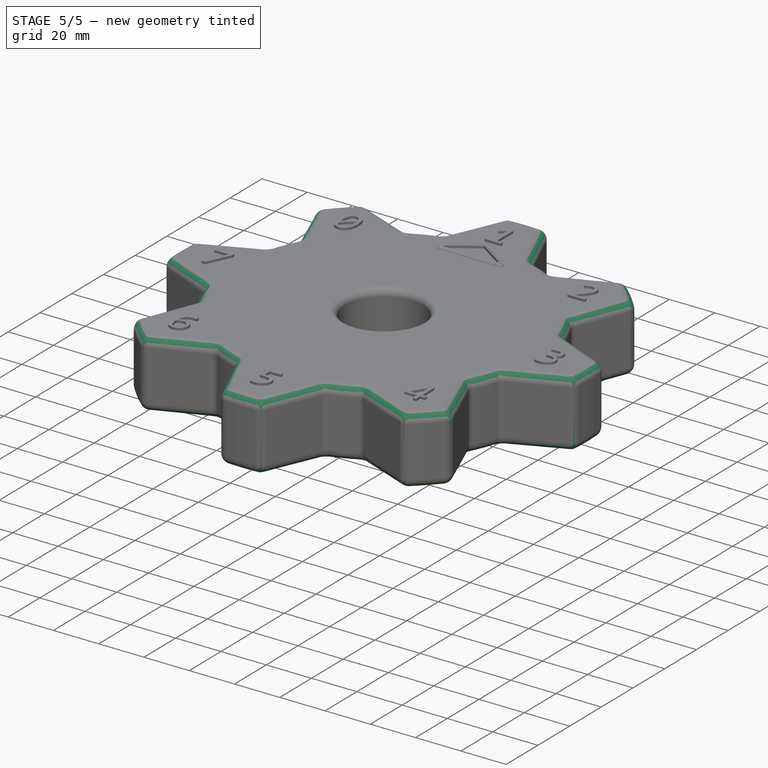
[diagram: stage 5 of 5 — iso view after this stage's code; geometry added in this stage tinted green]
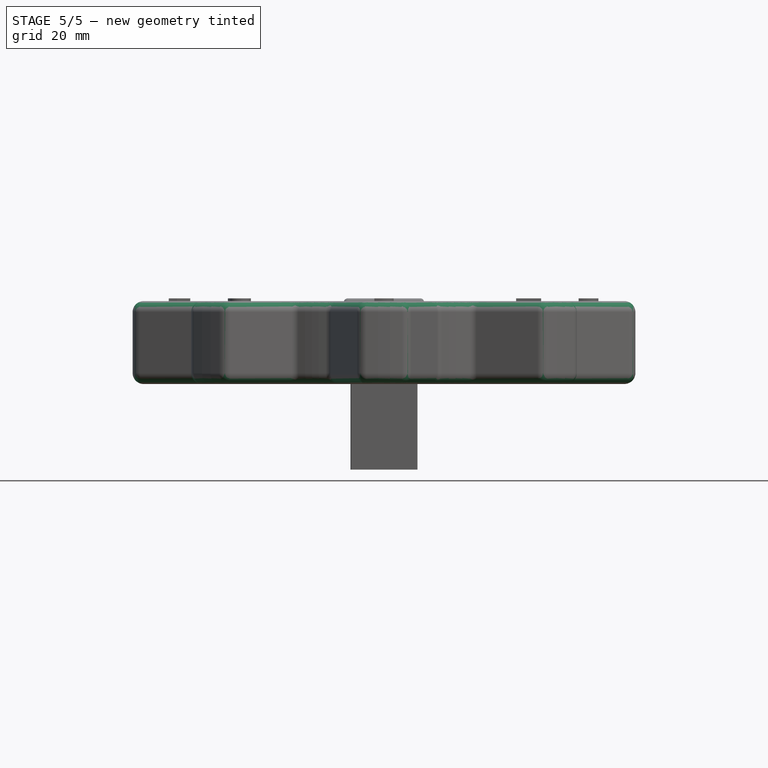
[diagram: stage 5 of 5 — front view after this stage's code; geometry added in this stage tinted green]
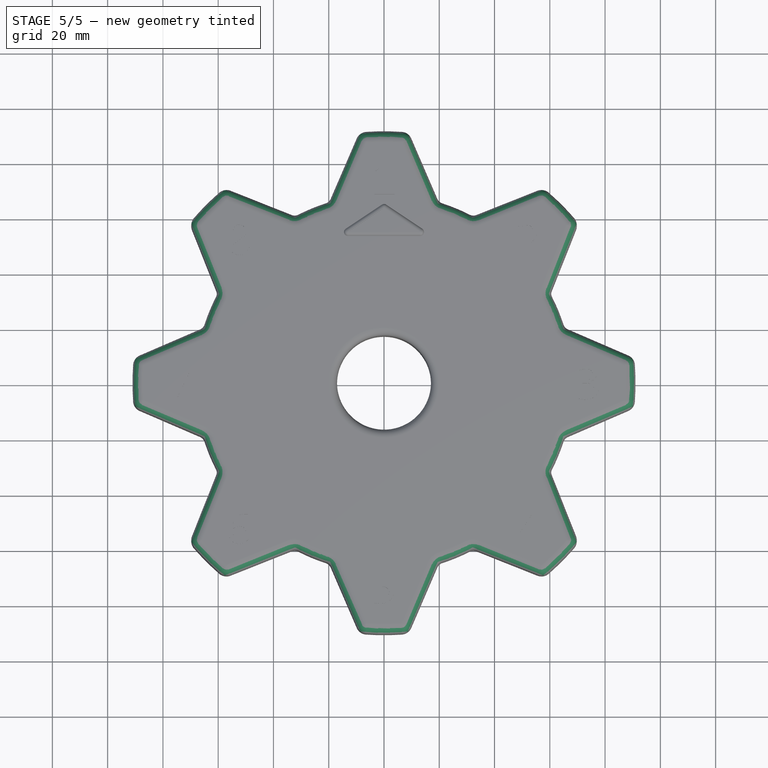
[diagram: stage 5 of 5 — top view after this stage's code; geometry added in this stage tinted green]
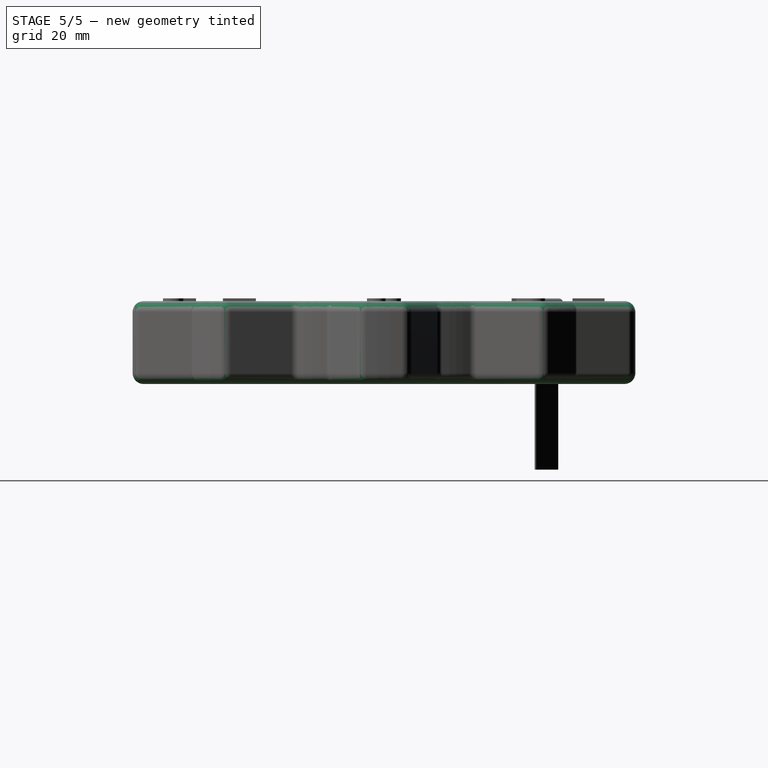
[diagram: stage 5 of 5 — right view after this stage's code; geometry added in this stage tinted green]
FEATURE [PartDesign::Fillet] Fillet001
  Base = -> Fillet [Edge100,Edge101,Edge72,Edge73,Edge97,Edge96,Edge93,Edge92,Edge89,Edge88,Edge85,Edge84,Edge81,Edge80,Edge77,Edge76]
  BaseFeature = -> Fillet
  Radius = 3
  Refine = true
  SupportTransform = false
FEATURE [PartDesign::Fillet] Fillet002
  Base = -> Fillet001 [Edge81,Edge85,Edge61,Edge57,Edge59,Edge63,Edge109,Edge105,Edge129,Edge133,Edge135,Edge131,Edge111,Edge107,Edge87,Edge83]
  BaseFeature = -> Fillet001
  Radius = 4
  Refine = true
  SupportTransform = false
FEATURE [PartDesign::Fillet] Fillet003
  Base = -> Fillet002 [Face67,Face1]
  BaseFeature = -> Fillet002
  Radius = 4
  Refine = true
  SupportTransform = false
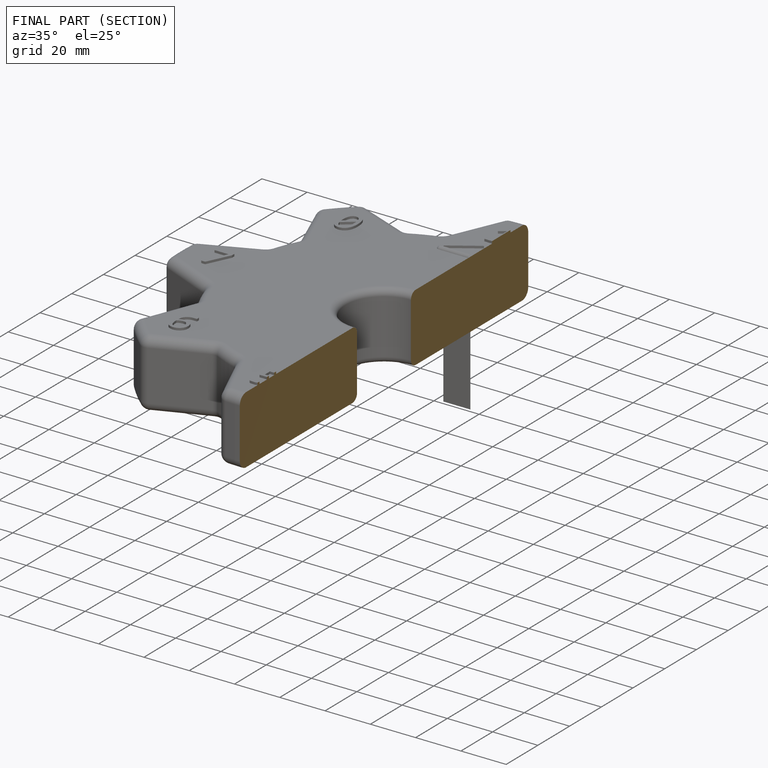
[diagram: finished part — half-section view (interior)]
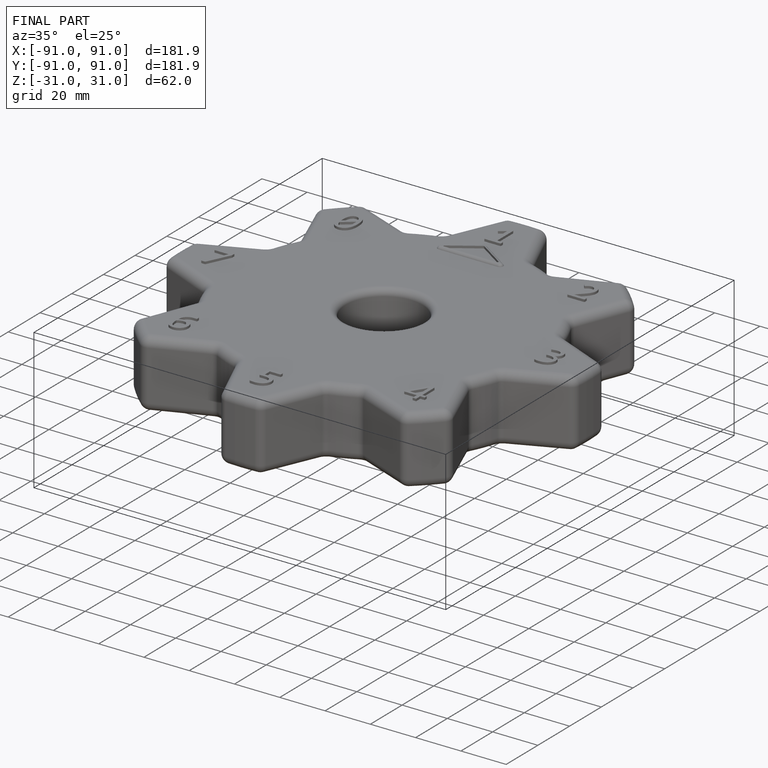
[diagram: finished part — iso view with bounding-box wireframe]
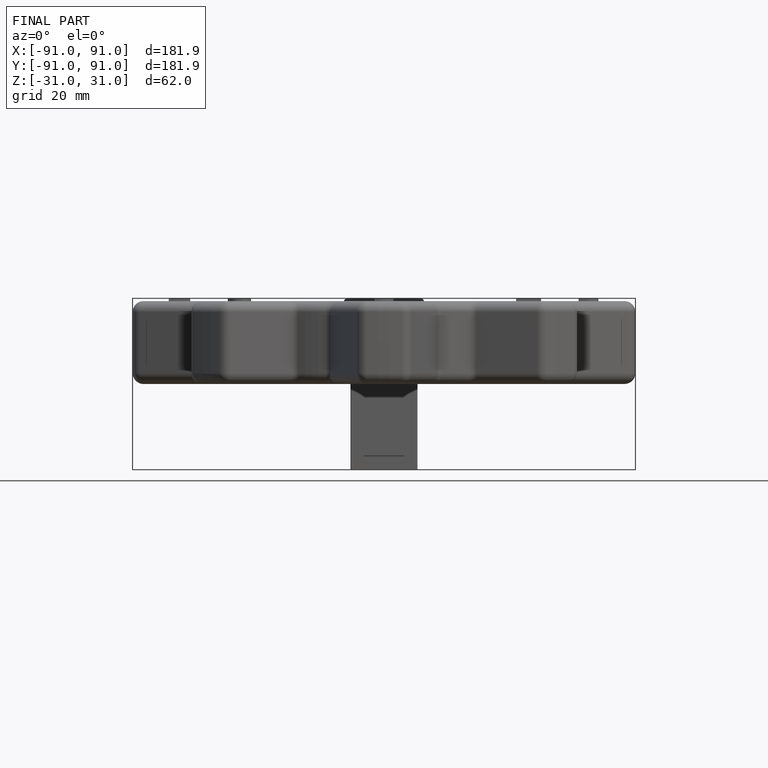
[diagram: finished part — front view with bounding-box wireframe]
